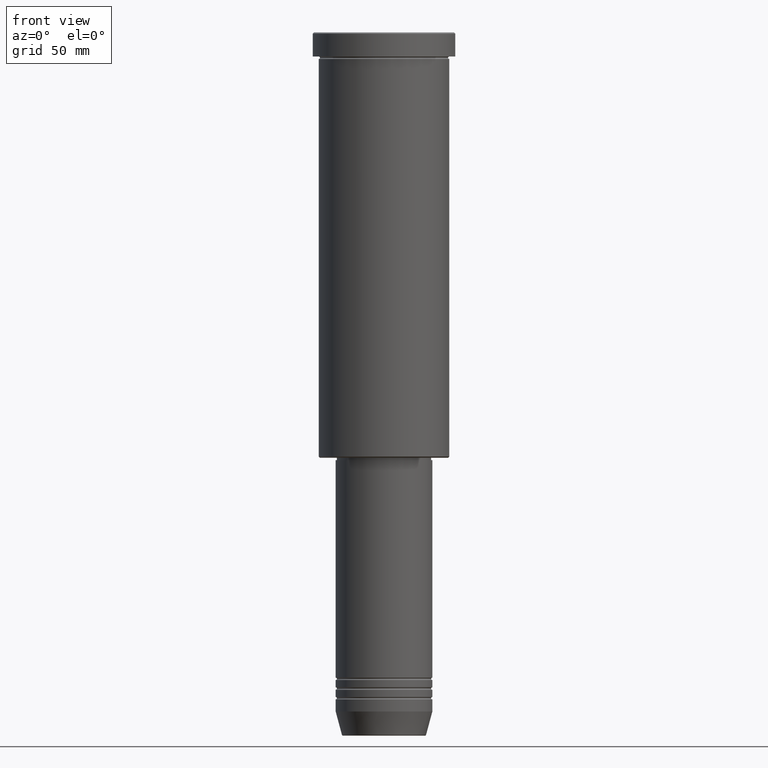
[diagram: clean part render]
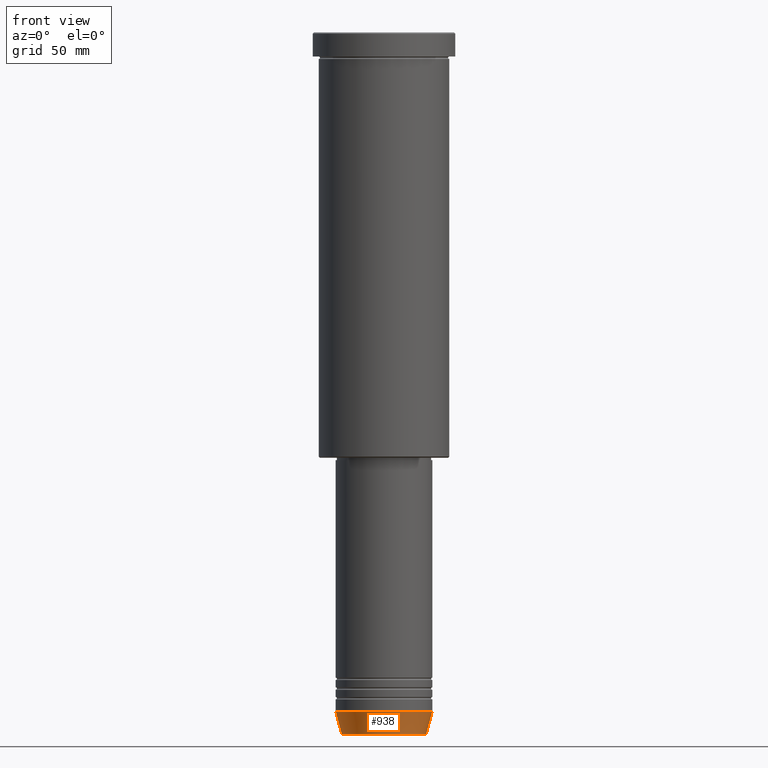
[diagram: same view with one face highlighted and labeled with its STEP entity id]
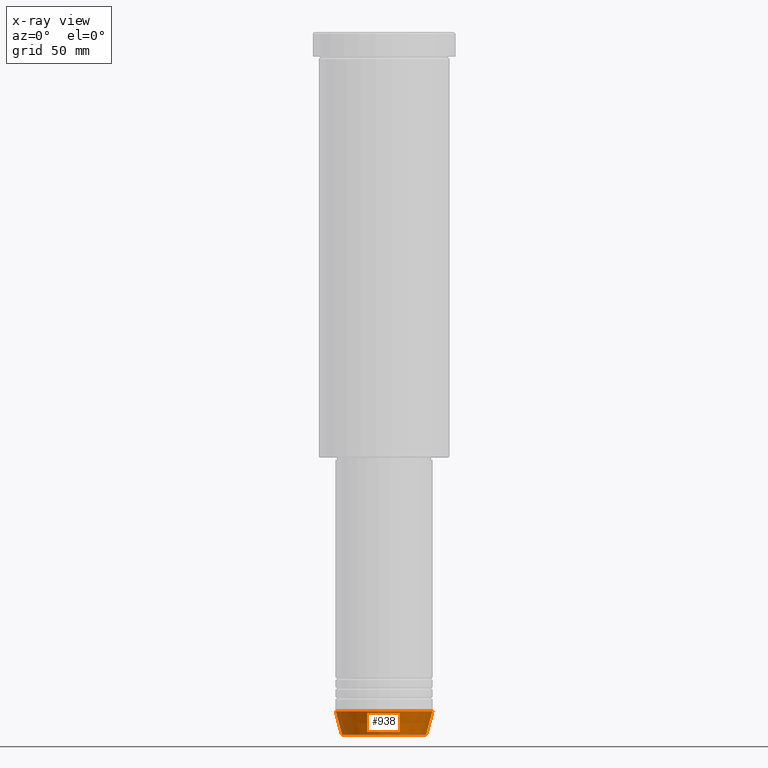
[diagram: x-ray of the same camera — body ghosted, the highlighted face saturated]
A machine part, front view. The second image highlights one B-rep face of the part: STEP entity #938.
The next image is the same camera in x-ray: the body ghosted, the highlighted face saturated — about 0% of this face is hidden behind the body in this view.
In plain terms, the highlighted conical surface has half-angle 15 deg.
Its self-contained STEP definition (entity closure, byte-faithful):
#24 = DIRECTION ( 'NONE',  ( -0.000000000000000000, -0.000000000000000000, 1.000000000000000000 ) ) ;
#52 = EDGE_CURVE ( 'NONE', #1023, #177, #884, .T. ) ;
#54 = AXIS2_PLACEMENT_3D ( 'NONE', #951, #24, #750 ) ;
#61 = CARTESIAN_POINT ( 'NONE',  ( 0.000000000000000000, 0.000000000000000000, -281.0000000000000000 ) ) ;
#69 = DIRECTION ( 'NONE',  ( 1.000000000000000000, 0.000000000000000000, 0.000000000000000000 ) ) ;
#78 = DIRECTION ( 'NONE',  ( 1.000000000000000000, 0.000000000000000000, 0.000000000000000000 ) ) ;
#101 = VERTEX_POINT ( 'NONE', #471 ) ;
#155 = ORIENTED_EDGE ( 'NONE', *, *, #52, .T. ) ;
#165 = DIRECTION ( 'NONE',  ( -0.000000000000000000, -0.000000000000000000, 1.000000000000000000 ) ) ;
#177 = VERTEX_POINT ( 'NONE', #246 ) ;
#179 = LINE ( 'NONE', #277, #1165 ) ;
#200 = VERTEX_POINT ( 'NONE', #328 ) ;
#225 = EDGE_CURVE ( 'NONE', #101, #200, #399, .T. ) ;
#246 = CARTESIAN_POINT ( 'NONE',  ( 17.41980749484382684, 0.000000000000000000, -290.6294095225512137 ) ) ;
#277 = CARTESIAN_POINT ( 'NONE',  ( 20.00000000000000000, 0.000000000000000000, -281.0000000000000000 ) ) ;
#305 = LINE ( 'NONE', #677, #872 ) ;
#328 = CARTESIAN_POINT ( 'NONE',  ( 20.00000000000000000, 0.000000000000000000, -281.0000000000000000 ) ) ;
#399 = CIRCLE ( 'NONE', #1098, 20.00000000000000000 ) ;
#432 = EDGE_CURVE ( 'NONE', #177, #200, #179, .T. ) ;
#433 = DIRECTION ( 'NONE',  ( 0.2588190451025211836, 0.000000000000000000, 0.9659258262890680902 ) ) ;
#457 = CARTESIAN_POINT ( 'NONE',  ( -17.41980749484382684, 2.291302373663531915E-15, -290.6294095225512137 ) ) ;
#471 = CARTESIAN_POINT ( 'NONE',  ( -20.00000000000000000, 2.449293598294706513E-15, -281.0000000000000000 ) ) ;
#567 = ORIENTED_EDGE ( 'NONE', *, *, #777, .F. ) ;
#583 = CONICAL_SURFACE ( 'NONE', #967, 20.00000000000000000, 0.2617993877991499074 ) ;
#627 = ORIENTED_EDGE ( 'NONE', *, *, #225, .F. ) ;
#677 = CARTESIAN_POINT ( 'NONE',  ( -20.00000000000000000, 2.449293598294706513E-15, -281.0000000000000000 ) ) ;
#689 = DIRECTION ( 'NONE',  ( -0.2588190451025211836, 3.169619151431770488E-17, 0.9659258262890680902 ) ) ;
#750 = DIRECTION ( 'NONE',  ( 1.000000000000000000, 0.000000000000000000, 0.000000000000000000 ) ) ;
#754 = EDGE_LOOP ( 'NONE', ( #567, #155, #1027, #627 ) ) ;
#777 = EDGE_CURVE ( 'NONE', #1023, #101, #305, .T. ) ;
#781 = DIRECTION ( 'NONE',  ( -0.000000000000000000, -0.000000000000000000, 1.000000000000000000 ) ) ;
#872 = VECTOR ( 'NONE', #689, 1000.000000000000114 ) ;
#884 = CIRCLE ( 'NONE', #54, 17.41980749484382684 ) ;
#938 = ADVANCED_FACE ( 'NONE', ( #957 ), #583, .T. ) ;
#947 = CARTESIAN_POINT ( 'NONE',  ( 0.000000000000000000, 0.000000000000000000, -281.0000000000000000 ) ) ;
#951 = CARTESIAN_POINT ( 'NONE',  ( 0.000000000000000000, 0.000000000000000000, -290.6294095225512137 ) ) ;
#957 = FACE_OUTER_BOUND ( 'NONE', #754, .T. ) ;
#967 = AXIS2_PLACEMENT_3D ( 'NONE', #947, #165, #78 ) ;
#1023 = VERTEX_POINT ( 'NONE', #457 ) ;
#1027 = ORIENTED_EDGE ( 'NONE', *, *, #432, .T. ) ;
#1098 = AXIS2_PLACEMENT_3D ( 'NONE', #61, #781, #69 ) ;
#1165 = VECTOR ( 'NONE', #433, 1000.000000000000114 ) ;